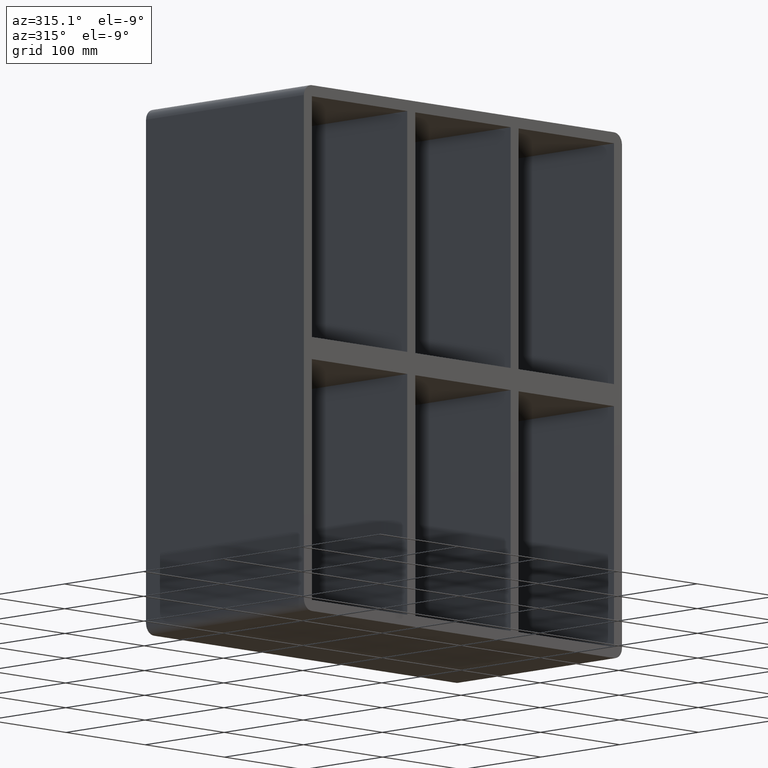
[diagram: clean part render]
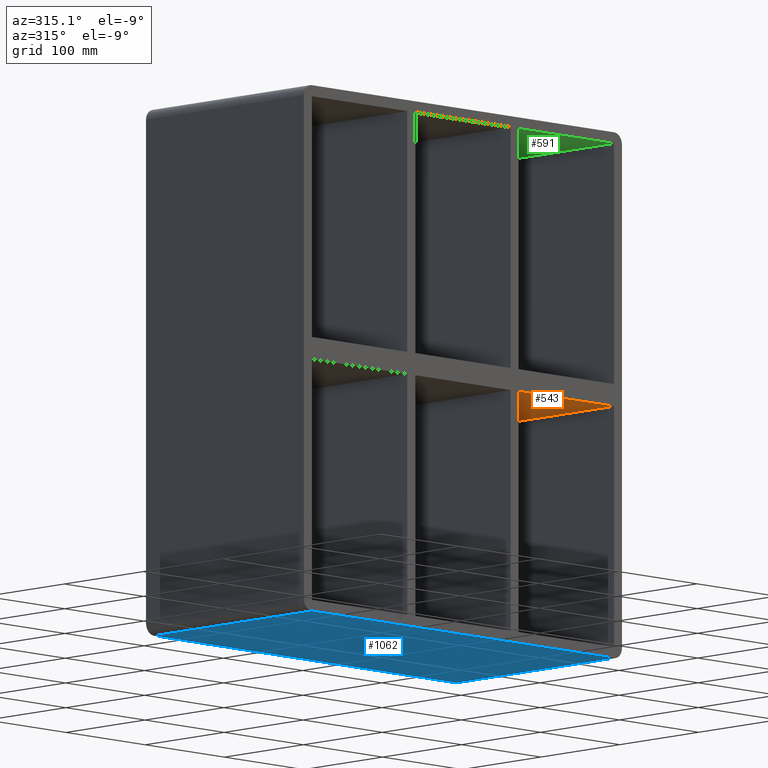
[diagram: same view with three faces highlighted in distinct colors, each labeled with its STEP entity id]
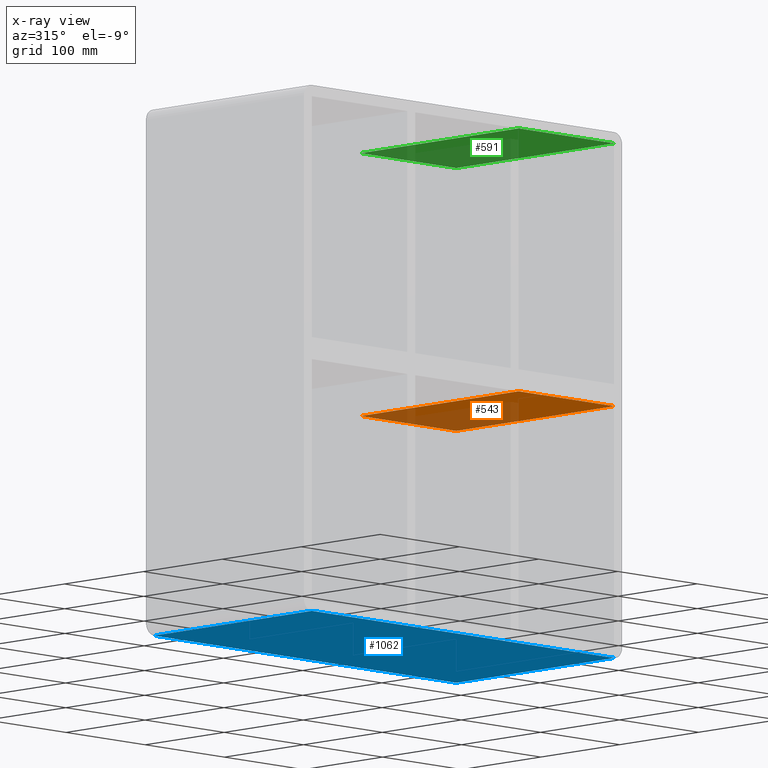
[diagram: x-ray of the same camera — body ghosted, the three highlighted faces saturated]
A machine part, auxiliary view with three faces highlighted in distinct colors.
The next image is the same camera in x-ray (body ghosted, the three faces saturated) — at least one of them is partly hidden behind the body in this view.
Their STEP definitions:

[orange] entity #543 — the highlighted planar face has unit normal (0, 0, -1).
#193=CARTESIAN_POINT('',(70.249999999985448,-3.0,-10.00000000001787));
#194=VERTEX_POINT('',#193);
#195=CARTESIAN_POINT('',(70.249999999985448,197.0,-10.00000000001787));
#196=VERTEX_POINT('',#195);
#197=CARTESIAN_POINT('',(70.249999999985448,-3.0,-10.00000000001787));
#198=DIRECTION('',(0.0,1.0,0.0));
#199=VECTOR('',#198,200.0);
#200=LINE('',#197,#199);
#201=EDGE_CURVE('',#194,#196,#200,.T.);
#434=CARTESIAN_POINT('',(190.75000000000728,-3.0,-10.000000000017856));
#435=VERTEX_POINT('',#434);
#436=CARTESIAN_POINT('',(190.75000000000728,-3.0,-10.000000000017856));
#437=DIRECTION('',(-1.0,0.0,0.0));
#438=VECTOR('',#437,120.50000000002183);
#439=LINE('',#436,#438);
#440=EDGE_CURVE('',#435,#194,#439,.T.);
#520=CARTESIAN_POINT('',(190.75000000000728,-3.0,-10.000000000017856));
#521=DIRECTION('',(0.0,0.0,-1.0));
#522=DIRECTION('',(-1.0,0.0,0.0));
#523=AXIS2_PLACEMENT_3D('',#520,#521,#522);
#524=PLANE('',#523);
#525=ORIENTED_EDGE('',*,*,#201,.T.);
#526=CARTESIAN_POINT('',(190.75000000000728,197.0,-10.000000000017856));
#527=VERTEX_POINT('',#526);
#528=CARTESIAN_POINT('',(190.75000000000728,197.0,-10.000000000017856));
#529=DIRECTION('',(-1.0,0.0,0.0));
#530=VECTOR('',#529,120.50000000002183);
#531=LINE('',#528,#530);
#532=EDGE_CURVE('',#527,#196,#531,.T.);
#533=ORIENTED_EDGE('',*,*,#532,.F.);
#534=CARTESIAN_POINT('',(190.75,-3.0,-10.00000000001787));
#535=DIRECTION('',(0.0,1.0,0.0));
#536=VECTOR('',#535,199.99999999999997);
#537=LINE('',#534,#536);
#538=EDGE_CURVE('',#435,#527,#537,.T.);
#539=ORIENTED_EDGE('',*,*,#538,.F.);
#540=ORIENTED_EDGE('',*,*,#440,.T.);
#541=EDGE_LOOP('',(#525,#533,#539,#540));
#542=FACE_OUTER_BOUND('',#541,.T.);
#543=ADVANCED_FACE('',(#542),#524,.T.);

[blue] entity #1062 — the highlighted planar face has unit normal (0, 0, -1).
#295=CARTESIAN_POINT('',(-190.75000000000003,-3.0,-238.00000000000006));
#296=VERTEX_POINT('',#295);
#306=CARTESIAN_POINT('',(190.75000000000003,-3.0,-238.00000000000006));
#307=VERTEX_POINT('',#306);
#308=CARTESIAN_POINT('',(-190.75000000000003,-3.0,-238.00000000000006));
#309=DIRECTION('',(1.0,0.0,0.0));
#310=VECTOR('',#309,381.50000000000006);
#311=LINE('',#308,#310);
#312=EDGE_CURVE('',#296,#307,#311,.T.);
#791=CARTESIAN_POINT('',(-190.75000000000003,197.0,-238.00000000000006));
#792=VERTEX_POINT('',#791);
#842=CARTESIAN_POINT('',(190.75000000000003,197.0,-238.00000000000006));
#843=VERTEX_POINT('',#842);
#851=CARTESIAN_POINT('',(190.75000000000003,197.0,-238.00000000000006));
#852=DIRECTION('',(-1.0,0.0,0.0));
#853=VECTOR('',#852,381.50000000000006);
#854=LINE('',#851,#853);
#855=EDGE_CURVE('',#843,#792,#854,.T.);
#1030=CARTESIAN_POINT('',(-190.75000000000003,197.0,-238.00000000000006));
#1031=DIRECTION('',(0.0,-1.0,0.0));
#1032=VECTOR('',#1031,200.0);
#1033=LINE('',#1030,#1032);
#1034=EDGE_CURVE('',#792,#296,#1033,.T.);
#1046=CARTESIAN_POINT('',(200.75000000000003,0.0,-238.00000000000006));
#1047=DIRECTION('',(0.0,0.0,-1.0));
#1048=DIRECTION('',(-1.0,0.0,0.0));
#1049=AXIS2_PLACEMENT_3D('',#1046,#1047,#1048);
#1050=PLANE('',#1049);
#1051=ORIENTED_EDGE('',*,*,#1034,.F.);
#1052=ORIENTED_EDGE('',*,*,#855,.F.);
#1053=CARTESIAN_POINT('',(190.75000000000003,-3.0,-238.00000000000006));
#1054=DIRECTION('',(0.0,1.0,0.0));
#1055=VECTOR('',#1054,200.0);
#1056=LINE('',#1053,#1055);
#1057=EDGE_CURVE('',#307,#843,#1056,.T.);
#1058=ORIENTED_EDGE('',*,*,#1057,.F.);
#1059=ORIENTED_EDGE('',*,*,#312,.F.);
#1060=EDGE_LOOP('',(#1051,#1052,#1058,#1059));
#1061=FACE_OUTER_BOUND('',#1060,.T.);
#1062=ADVANCED_FACE('',(#1061),#1050,.T.);

[green] entity #591 — the highlighted planar face has unit normal (0, 0, 1).
#163=CARTESIAN_POINT('',(70.249999999985448,197.0,228.0));
#164=VERTEX_POINT('',#163);
#171=CARTESIAN_POINT('',(70.249999999985448,-3.0,228.0));
#172=VERTEX_POINT('',#171);
#173=CARTESIAN_POINT('',(70.249999999985448,-3.0,227.99999999999997));
#174=DIRECTION('',(0.0,1.0,0.0));
#175=VECTOR('',#174,199.99999999999997);
#176=LINE('',#173,#175);
#177=EDGE_CURVE('',#172,#164,#176,.T.);
#409=CARTESIAN_POINT('',(190.75,-3.0,228.0));
#410=VERTEX_POINT('',#409);
#411=CARTESIAN_POINT('',(70.249999999985462,-3.0,227.99999999999997));
#412=DIRECTION('',(1.0,0.0,0.0));
#413=VECTOR('',#412,120.50000000001454);
#414=LINE('',#411,#413);
#415=EDGE_CURVE('',#172,#410,#414,.T.);
#568=CARTESIAN_POINT('',(-190.75000000000003,0.0,227.99999999999997));
#569=DIRECTION('',(0.0,0.0,1.0));
#570=DIRECTION('',(1.0,0.0,0.0));
#571=AXIS2_PLACEMENT_3D('',#568,#569,#570);
#572=PLANE('',#571);
#573=ORIENTED_EDGE('',*,*,#177,.T.);
#574=CARTESIAN_POINT('',(190.75,197.0,228.0));
#575=VERTEX_POINT('',#574);
#576=CARTESIAN_POINT('',(190.75,197.0,227.99999999999997));
#577=DIRECTION('',(-1.0,0.0,0.0));
#578=VECTOR('',#577,120.50000000001454);
#579=LINE('',#576,#578);
#580=EDGE_CURVE('',#575,#164,#579,.T.);
#581=ORIENTED_EDGE('',*,*,#580,.F.);
#582=CARTESIAN_POINT('',(190.75,-3.0,227.99999999999997));
#583=DIRECTION('',(0.0,1.0,0.0));
#584=VECTOR('',#583,200.0);
#585=LINE('',#582,#584);
#586=EDGE_CURVE('',#410,#575,#585,.T.);
#587=ORIENTED_EDGE('',*,*,#586,.F.);
#588=ORIENTED_EDGE('',*,*,#415,.F.);
#589=EDGE_LOOP('',(#573,#581,#587,#588));
#590=FACE_OUTER_BOUND('',#589,.T.);
#591=ADVANCED_FACE('',(#590),#572,.F.);